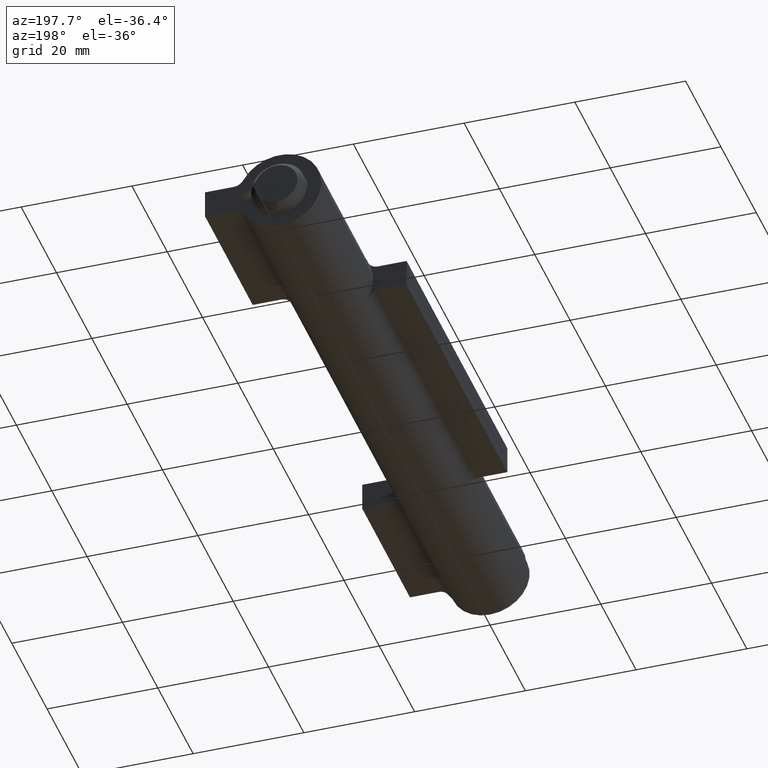
[diagram: clean part render]
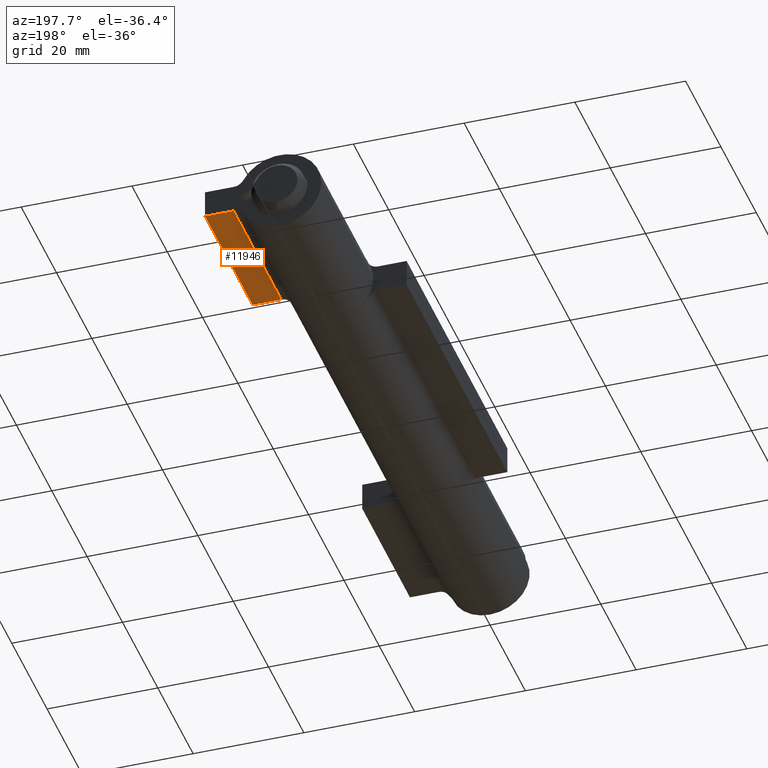
[diagram: same view with one face highlighted and labeled with its STEP entity id]
A machine part, auxiliary view. The second image highlights one B-rep face of the part: STEP entity #11946.
In plain terms, the highlighted planar face has unit normal (0, 0, 1).
Its self-contained STEP definition (entity closure, byte-faithful):
#79 = VECTOR ( 'NONE', #10479, 1000.000000000000000 ) ;
#164 = VERTEX_POINT ( 'NONE', #4129 ) ;
#506 = LINE ( 'NONE', #2152, #10453 ) ;
#780 = CARTESIAN_POINT ( 'NONE',  ( -2.549999999999998934, 13.50000000000000000, -8.339514374350583736 ) ) ;
#807 = EDGE_CURVE ( 'NONE', #8604, #971, #1734, .T. ) ;
#971 = VERTEX_POINT ( 'NONE', #1164 ) ;
#1164 = CARTESIAN_POINT ( 'NONE',  ( -2.549999999999998934, -13.50000000000000000, -8.339514374350583736 ) ) ;
#1734 = LINE ( 'NONE', #780, #11134 ) ;
#2152 = CARTESIAN_POINT ( 'NONE',  ( -2.549999999999999822, 13.50000000000000000, -13.50000000000000178 ) ) ;
#2472 = ORIENTED_EDGE ( 'NONE', *, *, #807, .F. ) ;
#3280 = DIRECTION ( 'NONE',  ( -8.403877085494752340E-17, 0.000000000000000000, -1.000000000000000000 ) ) ;
#3913 = VECTOR ( 'NONE', #6767, 1000.000000000000000 ) ;
#4003 = EDGE_CURVE ( 'NONE', #164, #971, #7547, .T. ) ;
#4004 = EDGE_CURVE ( 'NONE', #6627, #164, #506, .T. ) ;
#4129 = CARTESIAN_POINT ( 'NONE',  ( -2.549999999999999822, -13.50000000000000000, -13.50000000000000178 ) ) ;
#4272 = CARTESIAN_POINT ( 'NONE',  ( -2.549999999999998934, 13.50000000000000000, -8.339514374350583736 ) ) ;
#5782 = EDGE_LOOP ( 'NONE', ( #8951, #2472, #10119, #6950 ) ) ;
#5920 = CARTESIAN_POINT ( 'NONE',  ( -2.549999999999999822, 13.50000000000000000, -13.50000000000000178 ) ) ;
#6627 = VERTEX_POINT ( 'NONE', #5920 ) ;
#6767 = DIRECTION ( 'NONE',  ( 8.403877085494751107E-17, 0.000000000000000000, 1.000000000000000000 ) ) ;
#6950 = ORIENTED_EDGE ( 'NONE', *, *, #4004, .T. ) ;
#6952 = PLANE ( 'NONE',  #10802 ) ;
#7021 = CARTESIAN_POINT ( 'NONE',  ( -2.549999999999999822, 13.50000000000000000, -13.50000000000000178 ) ) ;
#7200 = DIRECTION ( 'NONE',  ( -0.000000000000000000, -1.000000000000000000, -0.000000000000000000 ) ) ;
#7334 = DIRECTION ( 'NONE',  ( -0.000000000000000000, -1.000000000000000000, -0.000000000000000000 ) ) ;
#7547 = LINE ( 'NONE', #11395, #3913 ) ;
#7669 = CARTESIAN_POINT ( 'NONE',  ( -2.549999999999999822, 13.50000000000000000, -13.50000000000000178 ) ) ;
#7997 = LINE ( 'NONE', #7669, #79 ) ;
#8604 = VERTEX_POINT ( 'NONE', #4272 ) ;
#8951 = ORIENTED_EDGE ( 'NONE', *, *, #4003, .T. ) ;
#9651 = DIRECTION ( 'NONE',  ( 1.000000000000000000, 0.000000000000000000, -8.403877085494752340E-17 ) ) ;
#10119 = ORIENTED_EDGE ( 'NONE', *, *, #10157, .F. ) ;
#10157 = EDGE_CURVE ( 'NONE', #6627, #8604, #7997, .T. ) ;
#10453 = VECTOR ( 'NONE', #7334, 1000.000000000000000 ) ;
#10479 = DIRECTION ( 'NONE',  ( 8.403877085494751107E-17, 0.000000000000000000, 1.000000000000000000 ) ) ;
#10761 = FACE_OUTER_BOUND ( 'NONE', #5782, .T. ) ;
#10802 = AXIS2_PLACEMENT_3D ( 'NONE', #7021, #9651, #3280 ) ;
#11134 = VECTOR ( 'NONE', #7200, 1000.000000000000000 ) ;
#11395 = CARTESIAN_POINT ( 'NONE',  ( -2.549999999999999822, -13.50000000000000000, -13.50000000000000178 ) ) ;
#11946 = ADVANCED_FACE ( 'NONE', ( #10761 ), #6952, .F. ) ;